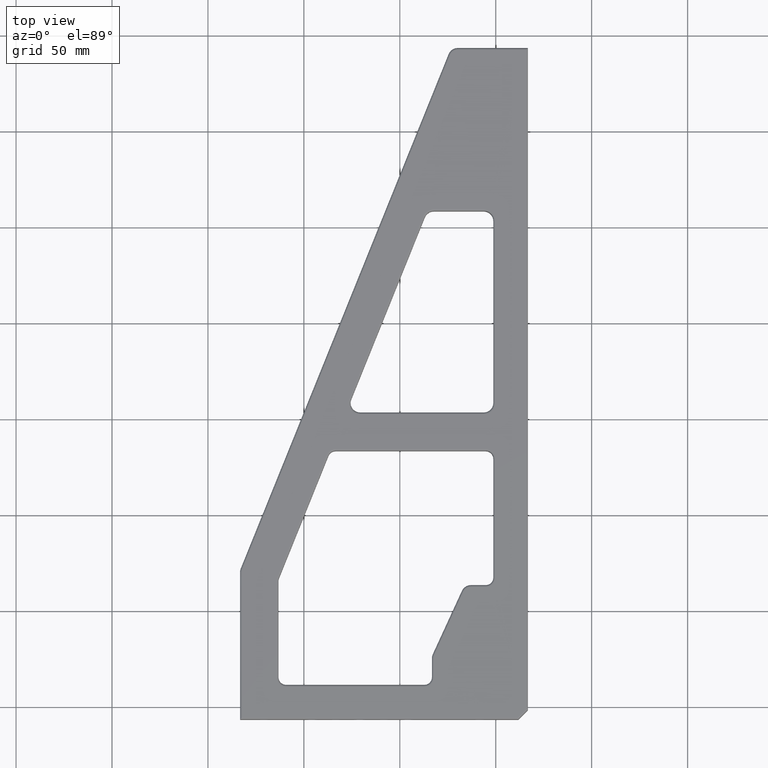
[diagram: clean part render]
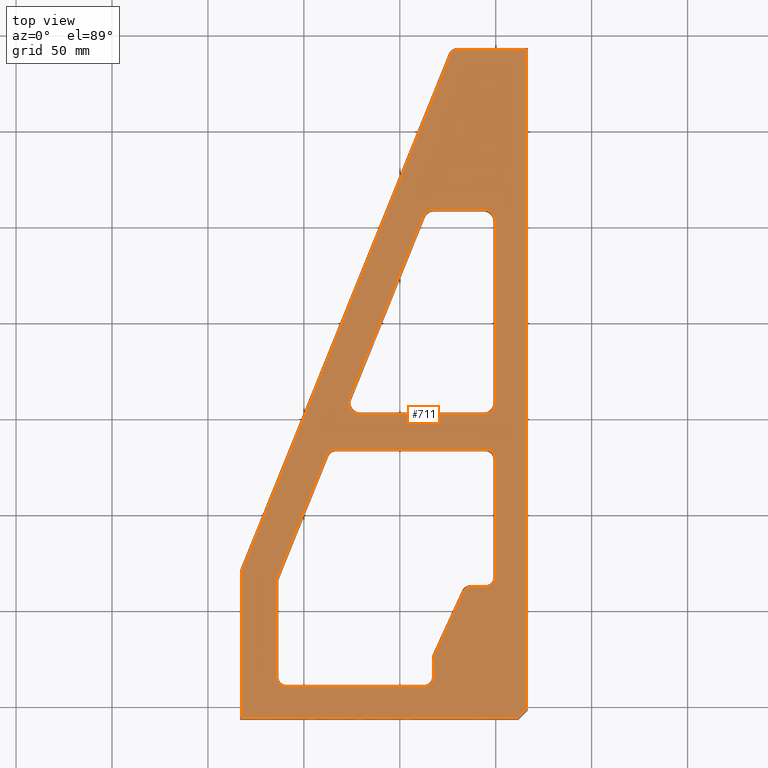
[diagram: same view with one face highlighted and labeled with its STEP entity id]
A machine part, top view. The second image highlights one B-rep face of the part: STEP entity #711.
In plain terms, the highlighted planar face has unit normal (0, 0, 1).
Its self-contained STEP definition (entity closure, byte-faithful):
#9 = VECTOR ( 'NONE', #4351, 1000.000000000000000 ) ;
#20 = DIRECTION ( 'NONE',  ( 0.0000000000000000000, -0.0000000000000000000, -1.000000000000000000 ) ) ;
#41 = CIRCLE ( 'NONE', #5042, 4.000000000000003600 ) ;
#55 = EDGE_CURVE ( 'NONE', #4718, #3707, #5805, .T. ) ;
#72 = CARTESIAN_POINT ( 'NONE',  ( 133.0000000000000000, 74.00000000000001400, 18.00000000000000000 ) ) ;
#79 = ORIENTED_EDGE ( 'NONE', *, *, #3282, .T. ) ;
#122 = CIRCLE ( 'NONE', #4526, 4.000000000000003600 ) ;
#124 = AXIS2_PLACEMENT_3D ( 'NONE', #4325, #3840, #5185 ) ;
#162 = DIRECTION ( 'NONE',  ( -1.000000000000000000, 3.611669139550354700E-016, -0.0000000000000000000 ) ) ;
#223 = ORIENTED_EDGE ( 'NONE', *, *, #3553, .T. ) ;
#260 = CARTESIAN_POINT ( 'NONE',  ( 149.0000000000000000, 349.0000000000000000, 18.00000000000000000 ) ) ;
#271 = LINE ( 'NONE', #1837, #2548 ) ;
#291 = EDGE_CURVE ( 'NONE', #3893, #1531, #271, .T. ) ;
#300 = CARTESIAN_POINT ( 'NONE',  ( 18.99999999999999600, 72.22247876344910400, 18.00000000000000000 ) ) ;
#306 = EDGE_CURVE ( 'NONE', #4744, #1345, #2687, .T. ) ;
#312 = CARTESIAN_POINT ( 'NONE',  ( 128.0000000000000000, 141.0000000000000000, 18.00000000000000000 ) ) ;
#314 = DIRECTION ( 'NONE',  ( -0.0000000000000000000, 0.0000000000000000000, 1.000000000000000000 ) ) ;
#347 = ORIENTED_EDGE ( 'NONE', *, *, #2329, .T. ) ;
#411 = CIRCLE ( 'NONE', #3646, 6.000000000000005300 ) ;
#434 = DIRECTION ( 'NONE',  ( 1.000000000000000000, 0.0000000000000000000, 0.0000000000000000000 ) ) ;
#438 = DIRECTION ( 'NONE',  ( 0.0000000000000000000, -0.0000000000000000000, -1.000000000000000000 ) ) ;
#450 = AXIS2_PLACEMENT_3D ( 'NONE', #4960, #2215, #5412 ) ;
#459 = ORIENTED_EDGE ( 'NONE', *, *, #857, .T. ) ;
#462 = CARTESIAN_POINT ( 'NONE',  ( 120.2052089382438900, 65.00000000000000000, 18.00000000000000000 ) ) ;
#474 = CIRCLE ( 'NONE', #4350, 5.000000000000000900 ) ;
#514 = DIRECTION ( 'NONE',  ( 0.0000000000000000000, -0.0000000000000000000, -1.000000000000000000 ) ) ;
#546 = CIRCLE ( 'NONE', #1243, 4.999999999999997300 ) ;
#547 = EDGE_CURVE ( 'NONE', #5417, #5775, #1616, .T. ) ;
#548 = CIRCLE ( 'NONE', #2925, 6.000000000000005300 ) ;
#590 = CARTESIAN_POINT ( 'NONE',  ( 1.291264581732830500, 78.26697095218024500, 18.00000000000000000 ) ) ;
#607 = CIRCLE ( 'NONE', #2345, 6.000000000000005300 ) ;
#610 = CARTESIAN_POINT ( 'NONE',  ( 127.0000000000000300, 158.9999999999999700, 18.00000000000000000 ) ) ;
#664 = VERTEX_POINT ( 'NONE', #312 ) ;
#674 = ORIENTED_EDGE ( 'NONE', *, *, #547, .T. ) ;
#697 = EDGE_CURVE ( 'NONE', #5235, #2514, #5621, .T. ) ;
#699 = CIRCLE ( 'NONE', #124, 5.000000000000004400 ) ;
#711 = ADVANCED_FACE ( 'NONE', ( #2261, #747, #5477 ), #803, .T. ) ;
#731 = ORIENTED_EDGE ( 'NONE', *, *, #5436, .T. ) ;
#747 = FACE_BOUND ( 'NONE', #2187, .T. ) ;
#760 = EDGE_CURVE ( 'NONE', #2390, #2864, #3517, .T. ) ;
#769 = VECTOR ( 'NONE', #1788, 1000.000000000000000 ) ;
#803 = PLANE ( 'NONE',  #2738 ) ;
#843 = DIRECTION ( 'NONE',  ( -0.3746065934159093500, -0.9271838545667884200, 0.0000000000000000000 ) ) ;
#854 = DIRECTION ( 'NONE',  ( 0.7071067811865474600, 0.7071067811865474600, -0.0000000000000000000 ) ) ;
#857 = EDGE_CURVE ( 'NONE', #3707, #4338, #548, .T. ) ;
#894 = DIRECTION ( 'NONE',  ( 0.0000000000000000000, -0.0000000000000000000, -1.000000000000000000 ) ) ;
#898 = VECTOR ( 'NONE', #5362, 1000.000000000000000 ) ;
#904 = VECTOR ( 'NONE', #972, 1000.000000000000000 ) ;
#907 = DIRECTION ( 'NONE',  ( 1.000000000000000000, 0.0000000000000000000, 0.0000000000000000000 ) ) ;
#909 = ORIENTED_EDGE ( 'NONE', *, *, #4396, .T. ) ;
#972 = DIRECTION ( 'NONE',  ( 2.643388153869419300E-016, -1.000000000000000000, 0.0000000000000000000 ) ) ;
#1015 = DIRECTION ( 'NONE',  ( -9.251858538542971800E-016, -1.000000000000000000, -0.0000000000000000000 ) ) ;
#1018 = VERTEX_POINT ( 'NONE', #5327 ) ;
#1043 = CARTESIAN_POINT ( 'NONE',  ( 133.0000000000000300, 164.9999999999999700, 18.00000000000000000 ) ) ;
#1056 = ORIENTED_EDGE ( 'NONE', *, *, #4998, .T. ) ;
#1057 = CARTESIAN_POINT ( 'NONE',  ( 62.56308649022202000, 159.0000000000000000, 18.00000000000000000 ) ) ;
#1069 = LINE ( 'NONE', #4206, #4572 ) ;
#1088 = EDGE_CURVE ( 'NONE', #1531, #4774, #474, .T. ) ;
#1110 = VECTOR ( 'NONE', #3155, 1000.000000000000000 ) ;
#1128 = CARTESIAN_POINT ( 'NONE',  ( 95.38247481716084100, 262.2476395604954900, 18.00000000000000000 ) ) ;
#1129 = CIRCLE ( 'NONE', #4205, 6.000000000000005300 ) ;
#1151 = CARTESIAN_POINT ( 'NONE',  ( 133.0000000000000000, 74.00000000000001400, 18.00000000000000000 ) ) ;
#1152 = CARTESIAN_POINT ( 'NONE',  ( 133.0000000000000000, 260.0000000000000000, 18.00000000000000000 ) ) ;
#1168 = VERTEX_POINT ( 'NONE', #3213 ) ;
#1173 = ORIENTED_EDGE ( 'NONE', *, *, #1088, .T. ) ;
#1195 = DIRECTION ( 'NONE',  ( 1.261617073437678500E-016, 1.000000000000000000, -0.0000000000000000000 ) ) ;
#1243 = AXIS2_PLACEMENT_3D ( 'NONE', #5000, #2252, #5444 ) ;
#1266 = DIRECTION ( 'NONE',  ( -0.4175001715507113400, -0.9086768439633127200, -0.0000000000000000000 ) ) ;
#1269 = EDGE_CURVE ( 'NONE', #2864, #1168, #4173, .T. ) ;
#1273 = CARTESIAN_POINT ( 'NONE',  ( 0.0000000000000000000, 0.0000000000000000000, 18.00000000000000000 ) ) ;
#1290 = AXIS2_PLACEMENT_3D ( 'NONE', #2661, #4957, #2212 ) ;
#1292 = DIRECTION ( 'NONE',  ( -1.000000000000000000, 0.0000000000000000000, 0.0000000000000000000 ) ) ;
#1300 = LINE ( 'NONE', #4025, #3708 ) ;
#1345 = VERTEX_POINT ( 'NONE', #2420 ) ;
#1419 = DIRECTION ( 'NONE',  ( 1.000000000000000000, 0.0000000000000000000, 0.0000000000000000000 ) ) ;
#1447 = ORIENTED_EDGE ( 'NONE', *, *, #4425, .T. ) ;
#1474 = CARTESIAN_POINT ( 'NONE',  ( 127.0000000000000300, 164.9999999999999700, 18.00000000000000000 ) ) ;
#1525 = VERTEX_POINT ( 'NONE', #3502 ) ;
#1526 = ORIENTED_EDGE ( 'NONE', *, *, #1814, .T. ) ;
#1531 = VERTEX_POINT ( 'NONE', #3668 ) ;
#1558 = VERTEX_POINT ( 'NONE', #4931 ) ;
#1595 = VERTEX_POINT ( 'NONE', #5527 ) ;
#1616 = LINE ( 'NONE', #1151, #5265 ) ;
#1658 = EDGE_CURVE ( 'NONE', #4338, #4080, #1989, .T. ) ;
#1666 = AXIS2_PLACEMENT_3D ( 'NONE', #3623, #894, #4084 ) ;
#1710 = DIRECTION ( 'NONE',  ( 0.0000000000000000000, -0.0000000000000000000, -1.000000000000000000 ) ) ;
#1714 = CIRCLE ( 'NONE', #3717, 5.000000000000004400 ) ;
#1741 = AXIS2_PLACEMENT_3D ( 'NONE', #3033, #314, #3488 ) ;
#1746 = ORIENTED_EDGE ( 'NONE', *, *, #5589, .T. ) ;
#1759 = LINE ( 'NONE', #300, #2186 ) ;
#1788 = DIRECTION ( 'NONE',  ( 1.000000000000000000, -0.0000000000000000000, -0.0000000000000000000 ) ) ;
#1814 = EDGE_CURVE ( 'NONE', #2514, #1595, #2478, .T. ) ;
#1837 = CARTESIAN_POINT ( 'NONE',  ( 23.99999999999999300, 17.00000000000000000, 18.00000000000000000 ) ) ;
#1863 = EDGE_CURVE ( 'NONE', #4080, #5152, #1129, .T. ) ;
#1865 = LINE ( 'NONE', #1057, #5356 ) ;
#1929 = DIRECTION ( 'NONE',  ( 1.000000000000000000, 0.0000000000000000000, 0.0000000000000000000 ) ) ;
#1944 = DIRECTION ( 'NONE',  ( -0.0000000000000000000, 0.0000000000000000000, 1.000000000000000000 ) ) ;
#1958 = EDGE_CURVE ( 'NONE', #5775, #2723, #699, .T. ) ;
#1989 = LINE ( 'NONE', #4030, #769 ) ;
#2091 = ORIENTED_EDGE ( 'NONE', *, *, #55, .T. ) ;
#2149 = VECTOR ( 'NONE', #3386, 1000.000000000000000 ) ;
#2186 = VECTOR ( 'NONE', #1195, 1000.000000000000000 ) ;
#2187 = EDGE_LOOP ( 'NONE', ( #4952, #2346, #3494, #4930, #3991, #3614, #2585, #1173, #731, #2929, #347, #3930, #5200, #1447, #674, #4721 ) ) ;
#2212 = DIRECTION ( 'NONE',  ( 1.000000000000000000, 2.775557561562891000E-015, 0.0000000000000000000 ) ) ;
#2215 = DIRECTION ( 'NONE',  ( -0.0000000000000000000, 0.0000000000000000000, 1.000000000000000000 ) ) ;
#2234 = CARTESIAN_POINT ( 'NONE',  ( 45.13187192549104800, 137.8730329670795200, 18.00000000000000000 ) ) ;
#2252 = DIRECTION ( 'NONE',  ( 0.0000000000000000000, -0.0000000000000000000, -1.000000000000000000 ) ) ;
#2261 = FACE_OUTER_BOUND ( 'NONE', #3976, .T. ) ;
#2304 = ORIENTED_EDGE ( 'NONE', *, *, #5489, .T. ) ;
#2329 = EDGE_CURVE ( 'NONE', #1345, #4894, #5560, .T. ) ;
#2345 = AXIS2_PLACEMENT_3D ( 'NONE', #1474, #4672, #1929 ) ;
#2346 = ORIENTED_EDGE ( 'NONE', *, *, #3102, .T. ) ;
#2348 = VERTEX_POINT ( 'NONE', #2633 ) ;
#2386 = VECTOR ( 'NONE', #1266, 1000.000000000000000 ) ;
#2390 = VERTEX_POINT ( 'NONE', #4568 ) ;
#2399 = VECTOR ( 'NONE', #854, 1000.000000000000100 ) ;
#2412 = CARTESIAN_POINT ( 'NONE',  ( 128.0000000000000000, 69.00000000000000000, 18.00000000000000000 ) ) ;
#2420 = CARTESIAN_POINT ( 'NONE',  ( 19.36408072716605800, 74.09551173052867100, 18.00000000000000000 ) ) ;
#2454 = EDGE_CURVE ( 'NONE', #5152, #4520, #3323, .T. ) ;
#2478 = LINE ( 'NONE', #3234, #4782 ) ;
#2483 = ORIENTED_EDGE ( 'NONE', *, *, #1863, .T. ) ;
#2491 = CIRCLE ( 'NONE', #1666, 5.000000000000004400 ) ;
#2514 = VERTEX_POINT ( 'NONE', #3275 ) ;
#2548 = VECTOR ( 'NONE', #5045, 1000.000000000000000 ) ;
#2557 = CARTESIAN_POINT ( 'NONE',  ( 101.0000000000000000, 31.90630995793982500, 18.00000000000000000 ) ) ;
#2580 = VERTEX_POINT ( 'NONE', #610 ) ;
#2585 = ORIENTED_EDGE ( 'NONE', *, *, #291, .T. ) ;
#2602 = EDGE_CURVE ( 'NONE', #2723, #2940, #3682, .T. ) ;
#2608 = CARTESIAN_POINT ( 'NONE',  ( 100.9455779445615500, 266.0000000000000000, 18.00000000000000000 ) ) ;
#2633 = CARTESIAN_POINT ( 'NONE',  ( 101.3652926241467600, 33.57631064414266600, 18.00000000000000000 ) ) ;
#2636 = CARTESIAN_POINT ( 'NONE',  ( 56.99998336282128300, 167.2476395604954600, 18.00000000000000000 ) ) ;
#2660 = DIRECTION ( 'NONE',  ( 0.3746065934159091800, 0.9271838545667885300, -0.0000000000000000000 ) ) ;
#2661 = CARTESIAN_POINT ( 'NONE',  ( 23.99999999999999600, 72.22247876344911800, 18.00000000000000000 ) ) ;
#2662 = CARTESIAN_POINT ( 'NONE',  ( 18.99999999999999600, 72.22247876344911800, 18.00000000000000000 ) ) ;
#2687 = CIRCLE ( 'NONE', #1290, 5.000000000000000900 ) ;
#2723 = VERTEX_POINT ( 'NONE', #2412 ) ;
#2738 = AXIS2_PLACEMENT_3D ( 'NONE', #1273, #3522, #4932 ) ;
#2742 = CARTESIAN_POINT ( 'NONE',  ( 127.0000000000000000, 260.0000000000000000, 18.00000000000000000 ) ) ;
#2772 = CARTESIAN_POINT ( 'NONE',  ( 23.99999999999999300, 22.00000000000000400, 18.00000000000000000 ) ) ;
#2864 = VERTEX_POINT ( 'NONE', #260 ) ;
#2891 = DIRECTION ( 'NONE',  ( -1.000000000000000000, 0.0000000000000000000, -0.0000000000000000000 ) ) ;
#2925 = AXIS2_PLACEMENT_3D ( 'NONE', #3612, #438, #3158 ) ;
#2929 = ORIENTED_EDGE ( 'NONE', *, *, #306, .T. ) ;
#2940 = VERTEX_POINT ( 'NONE', #3011 ) ;
#3011 = CARTESIAN_POINT ( 'NONE',  ( 120.2052089382438900, 69.00000000000000000, 18.00000000000000000 ) ) ;
#3033 = CARTESIAN_POINT ( 'NONE',  ( 4.999999999999985800, 76.76854457851666800, 18.00000000000000000 ) ) ;
#3102 = EDGE_CURVE ( 'NONE', #2940, #1018, #122, .T. ) ;
#3147 = DIRECTION ( 'NONE',  ( 0.0000000000000000000, -0.0000000000000000000, -1.000000000000000000 ) ) ;
#3155 = DIRECTION ( 'NONE',  ( 0.0000000000000000000, 1.000000000000000000, -0.0000000000000000000 ) ) ;
#3157 = ORIENTED_EDGE ( 'NONE', *, *, #697, .T. ) ;
#3158 = DIRECTION ( 'NONE',  ( 1.000000000000000000, 0.0000000000000000000, 0.0000000000000000000 ) ) ;
#3213 = CARTESIAN_POINT ( 'NONE',  ( 113.3725425842121100, 349.0000000000000000, 18.00000000000000000 ) ) ;
#3234 = CARTESIAN_POINT ( 'NONE',  ( 145.0000000000000000, 1.000000000000000000, 18.00000000000000000 ) ) ;
#3259 = CARTESIAN_POINT ( 'NONE',  ( 45.13187192549104800, 137.8730329670795200, 18.00000000000000000 ) ) ;
#3266 = ORIENTED_EDGE ( 'NONE', *, *, #2454, .T. ) ;
#3275 = CARTESIAN_POINT ( 'NONE',  ( 0.9999999999999997800, 1.000000000000000000, 18.00000000000000000 ) ) ;
#3282 = EDGE_CURVE ( 'NONE', #1168, #5828, #41, .T. ) ;
#3323 = LINE ( 'NONE', #3699, #904 ) ;
#3330 = CARTESIAN_POINT ( 'NONE',  ( 109.6638071659449500, 346.4984263736635600, 18.00000000000000000 ) ) ;
#3362 = ORIENTED_EDGE ( 'NONE', *, *, #5216, .T. ) ;
#3386 = DIRECTION ( 'NONE',  ( 0.3746065934159091300, 0.9271838545667885300, -0.0000000000000000000 ) ) ;
#3389 = DIRECTION ( 'NONE',  ( 1.000000000000000000, -0.0000000000000000000, 0.0000000000000000000 ) ) ;
#3427 = EDGE_CURVE ( 'NONE', #4894, #1558, #546, .T. ) ;
#3441 = CARTESIAN_POINT ( 'NONE',  ( 128.0000000000000000, 141.0000000000000000, 18.00000000000000000 ) ) ;
#3488 = DIRECTION ( 'NONE',  ( 1.000000000000000000, 0.0000000000000000000, 0.0000000000000000000 ) ) ;
#3494 = ORIENTED_EDGE ( 'NONE', *, *, #3910, .T. ) ;
#3502 = CARTESIAN_POINT ( 'NONE',  ( 100.9999999999999900, 22.00000000000000700, 18.00000000000000000 ) ) ;
#3517 = LINE ( 'NONE', #5911, #1110 ) ;
#3522 = DIRECTION ( 'NONE',  ( -0.0000000000000000000, 0.0000000000000000000, 1.000000000000000000 ) ) ;
#3553 = EDGE_CURVE ( 'NONE', #4520, #2580, #607, .T. ) ;
#3612 = CARTESIAN_POINT ( 'NONE',  ( 100.9455779445615500, 260.0000000000000000, 18.00000000000000000 ) ) ;
#3614 = ORIENTED_EDGE ( 'NONE', *, *, #4807, .T. ) ;
#3623 = CARTESIAN_POINT ( 'NONE',  ( 95.99999999999998600, 22.00000000000001100, 18.00000000000000000 ) ) ;
#3632 = DIRECTION ( 'NONE',  ( -0.0000000000000000000, 0.0000000000000000000, 1.000000000000000000 ) ) ;
#3646 = AXIS2_PLACEMENT_3D ( 'NONE', #4432, #1710, #4912 ) ;
#3668 = CARTESIAN_POINT ( 'NONE',  ( 23.99999999999999300, 17.00000000000000000, 18.00000000000000000 ) ) ;
#3682 = LINE ( 'NONE', #4752, #4768 ) ;
#3699 = CARTESIAN_POINT ( 'NONE',  ( 133.0000000000000300, 164.9999999999999700, 18.00000000000000000 ) ) ;
#3707 = VERTEX_POINT ( 'NONE', #5221 ) ;
#3708 = VECTOR ( 'NONE', #843, 1000.000000000000100 ) ;
#3717 = AXIS2_PLACEMENT_3D ( 'NONE', #5905, #3147, #434 ) ;
#3792 = CARTESIAN_POINT ( 'NONE',  ( 127.0000000000000000, 266.0000000000000000, 18.00000000000000000 ) ) ;
#3822 = VERTEX_POINT ( 'NONE', #2557 ) ;
#3840 = DIRECTION ( 'NONE',  ( 0.0000000000000000000, -0.0000000000000000000, -1.000000000000000000 ) ) ;
#3841 = CIRCLE ( 'NONE', #450, 4.000000000000003600 ) ;
#3893 = VERTEX_POINT ( 'NONE', #3961 ) ;
#3897 = CARTESIAN_POINT ( 'NONE',  ( 133.0000000000000000, 136.0000000000000000, 18.00000000000000000 ) ) ;
#3910 = EDGE_CURVE ( 'NONE', #1018, #2348, #5902, .T. ) ;
#3930 = ORIENTED_EDGE ( 'NONE', *, *, #3427, .T. ) ;
#3961 = CARTESIAN_POINT ( 'NONE',  ( 95.99999999999998600, 17.00000000000000700, 18.00000000000000000 ) ) ;
#3967 = CARTESIAN_POINT ( 'NONE',  ( 1.000000000000000000, 1.757250961937032300E-016, 18.00000000000000000 ) ) ;
#3976 = EDGE_LOOP ( 'NONE', ( #1746, #5784, #4650, #79, #909, #3362, #3157, #1526 ) ) ;
#3984 = CARTESIAN_POINT ( 'NONE',  ( 101.3652926241467600, 33.57631064414266600, 18.00000000000000000 ) ) ;
#3991 = ORIENTED_EDGE ( 'NONE', *, *, #4922, .T. ) ;
#4025 = CARTESIAN_POINT ( 'NONE',  ( 1.291264581732856500, 78.26697095218031600, 18.00000000000000000 ) ) ;
#4030 = CARTESIAN_POINT ( 'NONE',  ( 127.0000000000000000, 266.0000000000000000, 18.00000000000000000 ) ) ;
#4040 = VERTEX_POINT ( 'NONE', #590 ) ;
#4080 = VERTEX_POINT ( 'NONE', #3792 ) ;
#4084 = DIRECTION ( 'NONE',  ( 1.000000000000000000, -6.938893903907222500E-016, 0.0000000000000000000 ) ) ;
#4173 = LINE ( 'NONE', #4948, #5254 ) ;
#4205 = AXIS2_PLACEMENT_3D ( 'NONE', #2742, #20, #1419 ) ;
#4206 = CARTESIAN_POINT ( 'NONE',  ( 100.9999999999999900, 22.00000000000000700, 18.00000000000000000 ) ) ;
#4242 = EDGE_CURVE ( 'NONE', #1558, #664, #5800, .T. ) ;
#4325 = CARTESIAN_POINT ( 'NONE',  ( 128.0000000000000000, 74.00000000000001400, 18.00000000000000000 ) ) ;
#4331 = VECTOR ( 'NONE', #2660, 1000.000000000000000 ) ;
#4338 = VERTEX_POINT ( 'NONE', #2608 ) ;
#4344 = DIRECTION ( 'NONE',  ( -0.0000000000000000000, -1.000000000000000000, 0.0000000000000000000 ) ) ;
#4350 = AXIS2_PLACEMENT_3D ( 'NONE', #2772, #514, #4584 ) ;
#4351 = DIRECTION ( 'NONE',  ( 1.000000000000000000, -0.0000000000000000000, -0.0000000000000000000 ) ) ;
#4396 = EDGE_CURVE ( 'NONE', #5828, #4040, #1300, .T. ) ;
#4425 = EDGE_CURVE ( 'NONE', #664, #5417, #1714, .T. ) ;
#4432 = CARTESIAN_POINT ( 'NONE',  ( 62.56308649022202000, 165.0000000000000000, 18.00000000000000000 ) ) ;
#4501 = CARTESIAN_POINT ( 'NONE',  ( 71.79289321881343300, -71.79289321881343300, 18.00000000000000000 ) ) ;
#4520 = VERTEX_POINT ( 'NONE', #1043 ) ;
#4526 = AXIS2_PLACEMENT_3D ( 'NONE', #462, #3632, #907 ) ;
#4568 = CARTESIAN_POINT ( 'NONE',  ( 149.0000000000000000, 5.414213562373094000, 18.00000000000000000 ) ) ;
#4572 = VECTOR ( 'NONE', #1015, 1000.000000000000000 ) ;
#4584 = DIRECTION ( 'NONE',  ( 1.000000000000000000, 0.0000000000000000000, 0.0000000000000000000 ) ) ;
#4650 = ORIENTED_EDGE ( 'NONE', *, *, #1269, .T. ) ;
#4672 = DIRECTION ( 'NONE',  ( 0.0000000000000000000, -0.0000000000000000000, -1.000000000000000000 ) ) ;
#4691 = CARTESIAN_POINT ( 'NONE',  ( 113.3725425842121100, 345.0000000000000000, 18.00000000000000000 ) ) ;
#4718 = VERTEX_POINT ( 'NONE', #2636 ) ;
#4721 = ORIENTED_EDGE ( 'NONE', *, *, #1958, .T. ) ;
#4732 = EDGE_CURVE ( 'NONE', #2348, #3822, #3841, .T. ) ;
#4744 = VERTEX_POINT ( 'NONE', #2662 ) ;
#4752 = CARTESIAN_POINT ( 'NONE',  ( 120.2052089382438900, 69.00000000000000000, 18.00000000000000000 ) ) ;
#4768 = VECTOR ( 'NONE', #2891, 1000.000000000000000 ) ;
#4774 = VERTEX_POINT ( 'NONE', #5901 ) ;
#4782 = VECTOR ( 'NONE', #3389, 1000.000000000000000 ) ;
#4788 = CIRCLE ( 'NONE', #1741, 4.000000000000000900 ) ;
#4807 = EDGE_CURVE ( 'NONE', #1525, #3893, #2491, .T. ) ;
#4844 = LINE ( 'NONE', #4501, #2399 ) ;
#4855 = VERTEX_POINT ( 'NONE', #5518 ) ;
#4894 = VERTEX_POINT ( 'NONE', #3259 ) ;
#4912 = DIRECTION ( 'NONE',  ( 1.000000000000000000, 0.0000000000000000000, 0.0000000000000000000 ) ) ;
#4922 = EDGE_CURVE ( 'NONE', #3822, #1525, #1069, .T. ) ;
#4930 = ORIENTED_EDGE ( 'NONE', *, *, #4732, .T. ) ;
#4931 = CARTESIAN_POINT ( 'NONE',  ( 49.76779119832499300, 141.0000000000000000, 18.00000000000000000 ) ) ;
#4932 = DIRECTION ( 'NONE',  ( 1.000000000000000000, 0.0000000000000000000, 0.0000000000000000000 ) ) ;
#4948 = CARTESIAN_POINT ( 'NONE',  ( 113.3725425842121100, 349.0000000000000000, 18.00000000000000000 ) ) ;
#4952 = ORIENTED_EDGE ( 'NONE', *, *, #2602, .T. ) ;
#4957 = DIRECTION ( 'NONE',  ( 0.0000000000000000000, -0.0000000000000000000, -1.000000000000000000 ) ) ;
#4960 = CARTESIAN_POINT ( 'NONE',  ( 105.0000000000000100, 31.90630995793981800, 18.00000000000000000 ) ) ;
#4998 = EDGE_CURVE ( 'NONE', #2580, #4855, #1865, .T. ) ;
#5000 = CARTESIAN_POINT ( 'NONE',  ( 49.76779119832499300, 136.0000000000000000, 18.00000000000000000 ) ) ;
#5042 = AXIS2_PLACEMENT_3D ( 'NONE', #4691, #1944, #5154 ) ;
#5045 = DIRECTION ( 'NONE',  ( -1.000000000000000000, -8.673617379884035500E-017, -0.0000000000000000000 ) ) ;
#5103 = ORIENTED_EDGE ( 'NONE', *, *, #1658, .T. ) ;
#5152 = VERTEX_POINT ( 'NONE', #1152 ) ;
#5154 = DIRECTION ( 'NONE',  ( 1.000000000000000000, 0.0000000000000000000, 0.0000000000000000000 ) ) ;
#5185 = DIRECTION ( 'NONE',  ( 1.000000000000000000, 0.0000000000000000000, 0.0000000000000000000 ) ) ;
#5200 = ORIENTED_EDGE ( 'NONE', *, *, #4242, .T. ) ;
#5216 = EDGE_CURVE ( 'NONE', #4040, #5235, #4788, .T. ) ;
#5221 = CARTESIAN_POINT ( 'NONE',  ( 95.38247481716084100, 262.2476395604954900, 18.00000000000000000 ) ) ;
#5235 = VERTEX_POINT ( 'NONE', #5790 ) ;
#5254 = VECTOR ( 'NONE', #1292, 1000.000000000000000 ) ;
#5265 = VECTOR ( 'NONE', #4344, 1000.000000000000000 ) ;
#5327 = CARTESIAN_POINT ( 'NONE',  ( 116.5705015623906300, 66.67000068620285400, 18.00000000000000000 ) ) ;
#5356 = VECTOR ( 'NONE', #162, 1000.000000000000000 ) ;
#5362 = DIRECTION ( 'NONE',  ( 1.757250961937032100E-016, -1.000000000000000000, 0.0000000000000000000 ) ) ;
#5412 = DIRECTION ( 'NONE',  ( 1.000000000000000000, 0.0000000000000000000, 0.0000000000000000000 ) ) ;
#5417 = VERTEX_POINT ( 'NONE', #3897 ) ;
#5436 = EDGE_CURVE ( 'NONE', #4774, #4744, #1759, .T. ) ;
#5444 = DIRECTION ( 'NONE',  ( 1.000000000000000000, 0.0000000000000000000, 0.0000000000000000000 ) ) ;
#5477 = FACE_BOUND ( 'NONE', #5903, .T. ) ;
#5489 = EDGE_CURVE ( 'NONE', #4855, #4718, #411, .T. ) ;
#5518 = CARTESIAN_POINT ( 'NONE',  ( 62.56308649022202000, 159.0000000000000000, 18.00000000000000000 ) ) ;
#5527 = CARTESIAN_POINT ( 'NONE',  ( 144.5857864376268900, 1.000000000000000000, 18.00000000000000000 ) ) ;
#5560 = LINE ( 'NONE', #2234, #4331 ) ;
#5589 = EDGE_CURVE ( 'NONE', #1595, #2390, #4844, .T. ) ;
#5621 = LINE ( 'NONE', #3967, #898 ) ;
#5775 = VERTEX_POINT ( 'NONE', #72 ) ;
#5784 = ORIENTED_EDGE ( 'NONE', *, *, #760, .T. ) ;
#5790 = CARTESIAN_POINT ( 'NONE',  ( 0.9999999999999865700, 76.76854457851666800, 18.00000000000000000 ) ) ;
#5800 = LINE ( 'NONE', #3441, #9 ) ;
#5805 = LINE ( 'NONE', #1128, #2149 ) ;
#5828 = VERTEX_POINT ( 'NONE', #3330 ) ;
#5901 = CARTESIAN_POINT ( 'NONE',  ( 18.99999999999999300, 22.00000000000000400, 18.00000000000000000 ) ) ;
#5902 = LINE ( 'NONE', #3984, #2386 ) ;
#5903 = EDGE_LOOP ( 'NONE', ( #3266, #223, #1056, #2304, #2091, #459, #5103, #2483 ) ) ;
#5905 = CARTESIAN_POINT ( 'NONE',  ( 128.0000000000000000, 136.0000000000000000, 18.00000000000000000 ) ) ;
#5911 = CARTESIAN_POINT ( 'NONE',  ( 149.0000000000000000, 350.0000000000000000, 18.00000000000000000 ) ) ;